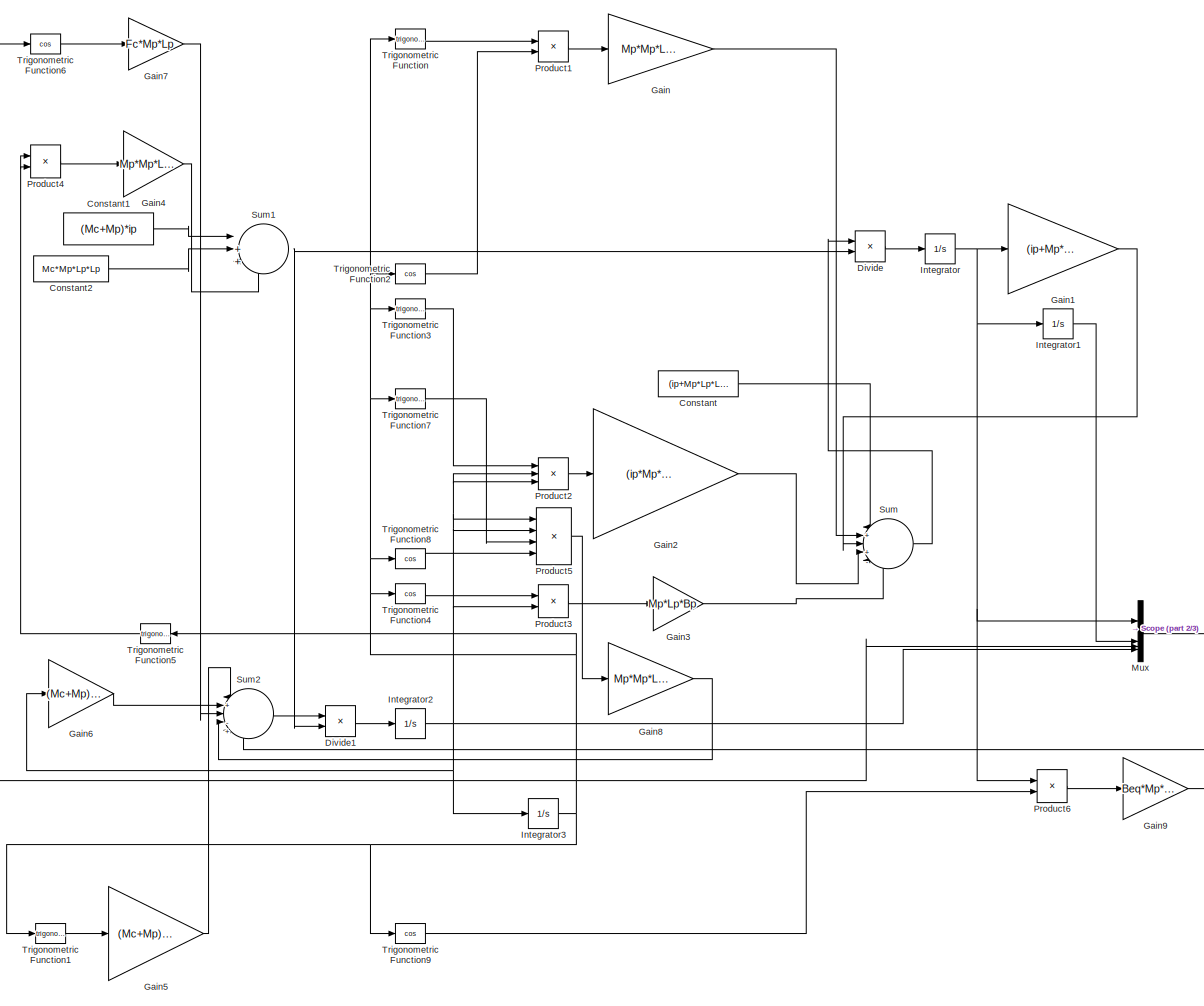
[diagram: root canvas - part 1/3, most of the canvas]
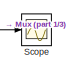
[diagram: root canvas - part 2/3, middle right region]
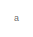
[diagram: root canvas - part 3/3, bottom left region]
MODEL slx_88189a2050ef
KIND model
CONFIG AbsTol = auto
CONFIG EnableMultiTasking = off
CONFIG FixedStep = auto
CONFIG InitFcn = ip = 0.0079;\nMc = 0.7031;\nLp = 0.3302;\nMp = 0.23;\nFc = 0;\nBeq = 4.3;\ng = 9.81;\nBp = 0.0024;
CONFIG MaxStep = 0.01
CONFIG MinStep = auto
CONFIG RelTol = 1e-3
CONFIG SampleTimeConstraint = Unconstrained
CONFIG SolverName = VariableStepAuto
CONFIG StartTime = 0.0
CONFIG StopTime = 20
BLOCK [Constant] Constant
  Value = (ip+Mp*Lp*Lp)*Fc
BLOCK [Constant] Constant1
  Value = (Mc+Mp)*ip
BLOCK [Constant] Constant2
  Value = Mc*Mp*Lp*Lp
BLOCK [Product] Divide
  Inputs = */
BLOCK [Product] Divide1
  Inputs = */
BLOCK [Gain] Gain
  Gain = Mp*Mp*Lp*Lp*g
BLOCK [Gain] Gain1
  Gain = (ip+Mp*Lp*Lp)*Beq
BLOCK [Gain] Gain2
  Gain = (ip*Mp*Lp - Mp*Mp*Lp*Lp*Lp)
BLOCK [Gain] Gain3
  Gain = Mp*Lp*Bp
BLOCK [Gain] Gain4
  Gain = Mp*Mp*Lp*Lp
BLOCK [Gain] Gain5
  Gain = (Mc+Mp)*Mp*g*Lp
BLOCK [Gain] Gain6
  Gain = (Mc+Mp)*Bp
BLOCK [Gain] Gain7
  Gain = Fc*Mp*Lp
BLOCK [Gain] Gain8
  Gain = Mp*Mp*Lp*Lp
BLOCK [Gain] Gain9
  Gain = Beq*Mp*Lp
BLOCK [Integrator] Integrator
BLOCK [Integrator] Integrator1
BLOCK [Integrator] Integrator2
BLOCK [Integrator] Integrator3
  InitialCondition = pi/180
BLOCK [Mux] Mux
  DisplayOption = bar
BLOCK [Product] Product1
BLOCK [Product] Product2
  Inputs = 3
BLOCK [Product] Product3
BLOCK [Product] Product4
BLOCK [Product] Product5
  Inputs = 4
BLOCK [Product] Product6
BLOCK [Scope] Scope
  Floating = off
  NumInputPorts = 1
  ScopeSpecificationString = Simulink.scopes.TimeScopeBlockCfg('CurrentConfiguration', extmgr.ConfigurationSet(extmgr.Configuration('Core','General UI',true),extmgr.Configuration('Core','Source UI',true),extmgr.Configuration('Sources','WiredSimulink',true),extmgr.Configuration('Visuals','Time Domain',true,'SerializedDisplays',{struct('MinYLimReal','-82.94961','MaxYLimReal','698.20404','YLabelReal','','MinYLimMag','0.00000','M...<+1526ch>
BLOCK [Sum] Sum
  Inputs = |+|+|-|-|-
BLOCK [Sum] Sum1
  Inputs = |+++
BLOCK [Sum] Sum2
  Inputs = |+|-|+|-|-
BLOCK [Trigonometry] Trigonometric Function
BLOCK [Trigonometry] Trigonometric Function1
BLOCK [Trigonometry] Trigonometric Function2
  Operator = cos
BLOCK [Trigonometry] Trigonometric Function3
BLOCK [Trigonometry] Trigonometric Function4
  Operator = cos
BLOCK [Trigonometry] Trigonometric Function5
  NameLocation = top
BLOCK [Trigonometry] Trigonometric Function6
  Operator = cos
BLOCK [Trigonometry] Trigonometric Function7
BLOCK [Trigonometry] Trigonometric Function8
  Operator = cos
BLOCK [Trigonometry] Trigonometric Function9
  Operator = cos
ANNOTATION (root): a
LINE Constant1:1 -> Sum1:1
LINE Constant2:1 -> Sum1:2
LINE Constant:1 -> Sum:1
LINE Divide1:1 -> Integrator2:1
LINE Divide:1 -> Integrator:1
LINE Gain1:1 -> Sum:3
LINE Gain2:1 -> Sum:4
LINE Gain3:1 -> Sum:5
LINE Gain4:1 -> Sum1:3
LINE Gain5:1 -> Sum2:1
LINE Gain6:1 -> Sum2:2
LINE Gain7:1 -> Sum2:3
LINE Gain8:1 -> Sum2:4
LINE Gain9:1 -> Sum2:5
LINE Gain:1 -> Sum:2
LINE Integrator1:1 -> Mux:2
NET Integrator2:1 -> Gain6:1, Integrator3:1, Mux:4, Product2:2, Product2:3, Product3:2, Product5:1, Product5:2
NET Integrator3:1 -> Mux:3, Trigonometric Function1:1, Trigonometric Function2:1, Trigonometric Function3:1, Trigonometric Function4:1, Trigonometric Function5:1, Trigonometric Function6:1, Trigonometric Function7:1, Trigonometric Function8:1, Trigonometric Function9:1, Trigonometric Function:1
NET Integrator:1 -> Gain1:1, Integrator1:1, Mux:1, Product6:1
LINE Mux:1 -> Scope:1
LINE Product1:1 -> Gain:1
LINE Product2:1 -> Gain2:1
LINE Product3:1 -> Gain3:1
LINE Product4:1 -> Gain4:1
LINE Product5:1 -> Gain8:1
LINE Product6:1 -> Gain9:1
NET Sum1:1 -> Divide1:2, Divide:2
LINE Sum2:1 -> Divide1:1
LINE Sum:1 -> Divide:1
LINE Trigonometric Function1:1 -> Gain5:1
LINE Trigonometric Function2:1 -> Product1:2
LINE Trigonometric Function3:1 -> Product2:1
LINE Trigonometric Function4:1 -> Product3:1
NET Trigonometric Function5:1 -> Product4:1, Product4:2
LINE Trigonometric Function6:1 -> Gain7:1
LINE Trigonometric Function7:1 -> Product5:3
LINE Trigonometric Function8:1 -> Product5:4
LINE Trigonometric Function9:1 -> Product6:2
LINE Trigonometric Function:1 -> Product1:1
note: NET lines group one-source signal fan-out (src -> all destinations, sorted); 1:1 wires keep LINE
